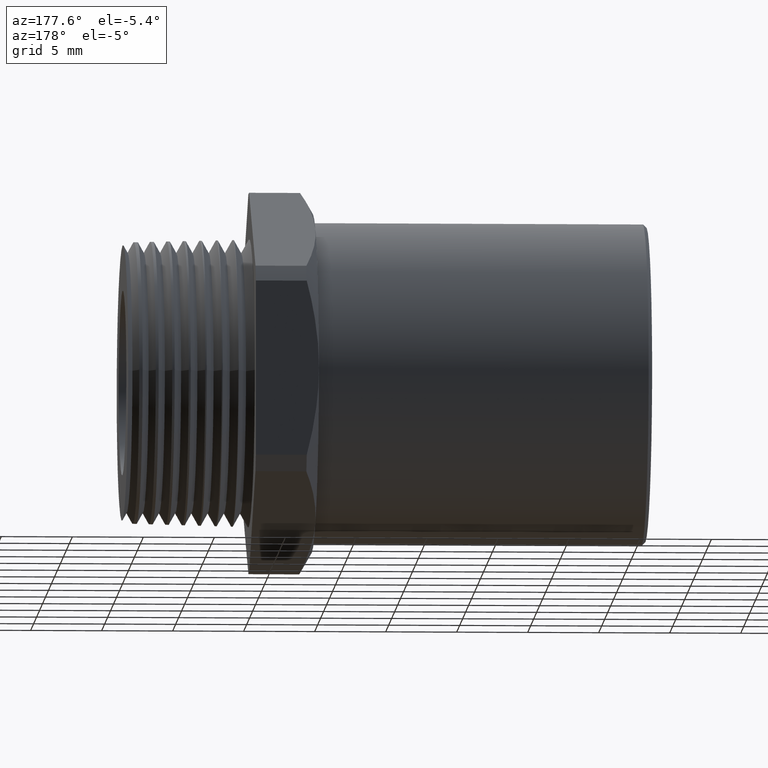
[diagram: clean part render]
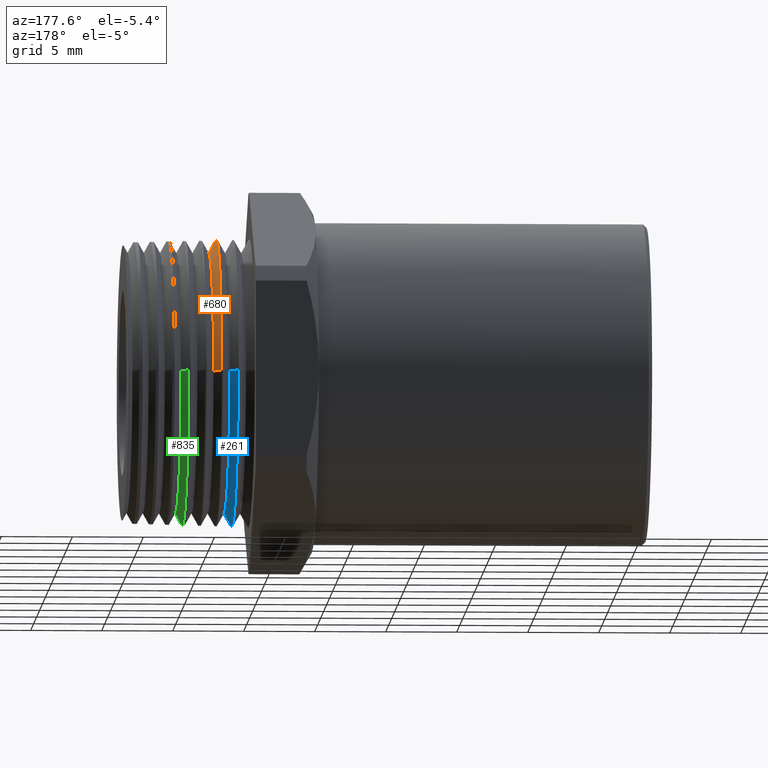
[diagram: same view with three faces highlighted in distinct colors, each labeled with its STEP entity id]
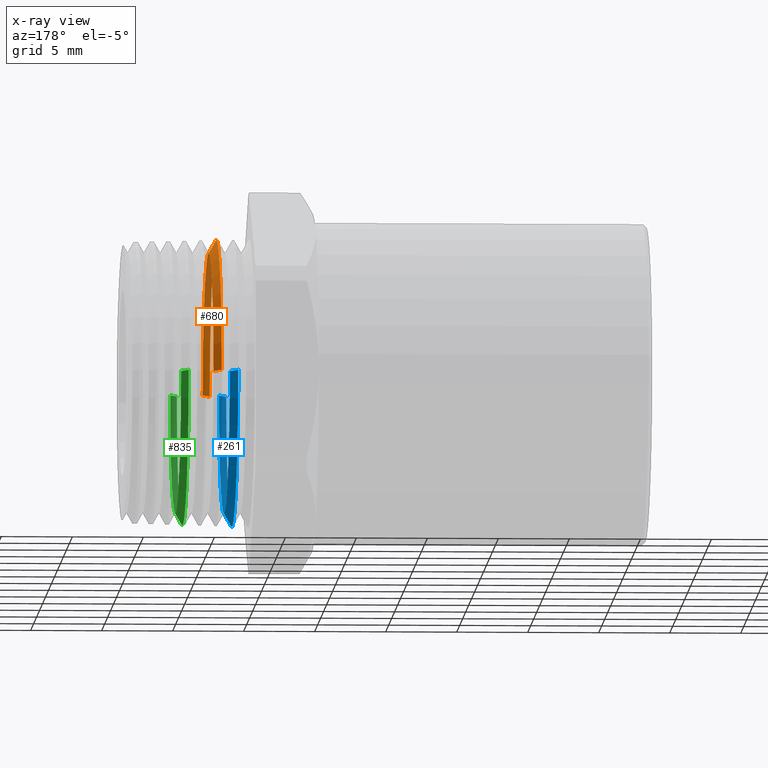
[diagram: x-ray of the same camera — body ghosted, the three highlighted faces saturated]
A machine part, auxiliary view with three faces highlighted in distinct colors.
The next image is the same camera in x-ray (body ghosted, the three faces saturated) — at least one of them is partly hidden behind the body in this view.
Their STEP definitions:

[orange] entity #680 — the highlighted conical surface has half-angle 60 deg.
#652 = VERTEX_POINT ( 'NONE', #2089 ) ;
#672 = EDGE_CURVE ( 'NONE', #652, #687, #2124, .T. ) ;
#679 = ORIENTED_EDGE ( 'NONE', *, *, #699, .T. ) ;
#680 = ADVANCED_FACE ( 'NONE', ( #2112 ), #2111, .T. ) ;
#687 = VERTEX_POINT ( 'NONE', #2156 ) ;
#688 = ORIENTED_EDGE ( 'NONE', *, *, #672, .F. ) ;
#690 = EDGE_LOOP ( 'NONE', ( #688, #679, #733, #783, #710 ) ) ;
#695 = VERTEX_POINT ( 'NONE', #2142 ) ;
#699 = EDGE_CURVE ( 'NONE', #652, #695, #2194, .T. ) ;
#710 = ORIENTED_EDGE ( 'NONE', *, *, #717, .F. ) ;
#717 = EDGE_CURVE ( 'NONE', #687, #785, #2213, .T. ) ;
#718 = VERTEX_POINT ( 'NONE', #2209 ) ;
#719 = EDGE_CURVE ( 'NONE', #718, #695, #2208, .T. ) ;
#732 = EDGE_CURVE ( 'NONE', #785, #718, #2243, .T. ) ;
#733 = ORIENTED_EDGE ( 'NONE', *, *, #719, .F. ) ;
#783 = ORIENTED_EDGE ( 'NONE', *, *, #732, .F. ) ;
#785 = VERTEX_POINT ( 'NONE', #2331 ) ;
#2089 = CARTESIAN_POINT ( 'NONE',  ( -0.2374370674708087000, 0.3609198544916924500, 4.644637973015400500E-017 ) ) ;
#2107 = DIRECTION ( 'NONE',  ( 0.0000000000000000000, -1.000000000000000000, 0.0000000000000000000 ) ) ;
#2108 = DIRECTION ( 'NONE',  ( -1.000000000000000000, 3.789761643835506200E-017, 0.0000000000000000000 ) ) ;
#2109 = AXIS2_PLACEMENT_3D ( 'NONE', #2117, #2108, #2107 ) ;
#2111 = CONICAL_SURFACE ( 'NONE', #2109, 0.4000000000000001900, 1.047197551196596300 ) ;
#2112 = FACE_OUTER_BOUND ( 'NONE', #690, .T. ) ;
#2117 = CARTESIAN_POINT ( 'NONE',  ( -0.2599999999999999500, -4.791035697261788400E-017, 0.0000000000000000000 ) ) ;
#2120 = DIRECTION ( 'NONE',  ( 0.0000000000000000000, 1.000000000000000000, 0.0000000000000000000 ) ) ;
#2121 = DIRECTION ( 'NONE',  ( 1.000000000000000000, -3.789761643835506200E-017, 0.0000000000000000000 ) ) ;
#2122 = CARTESIAN_POINT ( 'NONE',  ( -0.2374370674708087000, -4.876543833533366000E-017, 0.0000000000000000000 ) ) ;
#2123 = AXIS2_PLACEMENT_3D ( 'NONE', #2122, #2121, #2120 ) ;
#2124 = CIRCLE ( 'NONE', #2123, 0.3609198544916925000 ) ;
#2142 = CARTESIAN_POINT ( 'NONE',  ( -0.2586184527505260800, 0.3976070899708543100, 4.869282500511004300E-017 ) ) ;
#2156 = CARTESIAN_POINT ( 'NONE',  ( -0.2374370674708087000, -0.3609198544916925600, 0.0000000000000000000 ) ) ;
#2191 = DIRECTION ( 'NONE',  ( -0.5000000000000012200, 0.8660254037844379300, 1.060575238724906100E-016 ) ) ;
#2192 = VECTOR ( 'NONE', #2191, 39.37007874015748100 ) ;
#2193 = CARTESIAN_POINT ( 'NONE',  ( -0.2599999999999999500, 0.4000000000000000800, 4.898587196589414900E-017 ) ) ;
#2194 = LINE ( 'NONE', #2193, #2192 ) ;
#2204 = DIRECTION ( 'NONE',  ( 0.0000000000000000000, 0.0000000000000000000, 1.000000000000000000 ) ) ;
#2205 = DIRECTION ( 'NONE',  ( -1.000000000000000000, 0.0000000000000000000, 0.0000000000000000000 ) ) ;
#2206 = CARTESIAN_POINT ( 'NONE',  ( -0.2586184527505260800, -4.796271432036991400E-017, 0.0000000000000000000 ) ) ;
#2207 = AXIS2_PLACEMENT_3D ( 'NONE', #2206, #2205, #2204 ) ;
#2208 = CIRCLE ( 'NONE', #2207, 0.3976070899708543700 ) ;
#2209 = CARTESIAN_POINT ( 'NONE',  ( -0.2586184527505260800, -4.796271432036991400E-017, 0.3976070899708543700 ) ) ;
#2210 = DIRECTION ( 'NONE',  ( -0.5000000000000012200, -0.8660254037844379300, 0.0000000000000000000 ) ) ;
#2211 = VECTOR ( 'NONE', #2210, 39.37007874015748100 ) ;
#2212 = CARTESIAN_POINT ( 'NONE',  ( -0.2599999999999999500, -0.4000000000000002400, 0.0000000000000000000 ) ) ;
#2213 = LINE ( 'NONE', #2212, #2211 ) ;
#2239 = DIRECTION ( 'NONE',  ( 0.0000000000000000000, 0.0000000000000000000, 1.000000000000000000 ) ) ;
#2240 = DIRECTION ( 'NONE',  ( -1.000000000000000000, 0.0000000000000000000, 0.0000000000000000000 ) ) ;
#2241 = CARTESIAN_POINT ( 'NONE',  ( -0.2586184527505260800, -4.796271432036991400E-017, 0.0000000000000000000 ) ) ;
#2242 = AXIS2_PLACEMENT_3D ( 'NONE', #2241, #2240, #2239 ) ;
#2243 = CIRCLE ( 'NONE', #2242, 0.3976070899708543700 ) ;
#2331 = CARTESIAN_POINT ( 'NONE',  ( -0.2586184527505260800, -0.3976070899708544800, 0.0000000000000000000 ) ) ;

[blue] entity #261 — the highlighted conical surface has half-angle 60 deg.
#179 = ORIENTED_EDGE ( 'NONE', *, *, #579, .F. ) ;
#180 = ORIENTED_EDGE ( 'NONE', *, *, #696, .F. ) ;
#181 = ORIENTED_EDGE ( 'NONE', *, *, #773, .T. ) ;
#182 = ORIENTED_EDGE ( 'NONE', *, *, #183, .F. ) ;
#183 = EDGE_CURVE ( 'NONE', #747, #740, #1209, .T. ) ;
#247 = EDGE_LOOP ( 'NONE', ( #249, #182, #181, #180, #179 ) ) ;
#249 = ORIENTED_EDGE ( 'NONE', *, *, #721, .F. ) ;
#261 = ADVANCED_FACE ( 'NONE', ( #1315 ), #1314, .T. ) ;
#579 = EDGE_CURVE ( 'NONE', #720, #589, #1906, .T. ) ;
#589 = VERTEX_POINT ( 'NONE', #1953 ) ;
#696 = EDGE_CURVE ( 'NONE', #589, #697, #2141, .T. ) ;
#697 = VERTEX_POINT ( 'NONE', #2136 ) ;
#720 = VERTEX_POINT ( 'NONE', #2203 ) ;
#721 = EDGE_CURVE ( 'NONE', #740, #720, #2202, .T. ) ;
#740 = VERTEX_POINT ( 'NONE', #2229 ) ;
#747 = VERTEX_POINT ( 'NONE', #2281 ) ;
#773 = EDGE_CURVE ( 'NONE', #747, #697, #2295, .T. ) ;
#1201 = DIRECTION ( 'NONE',  ( 0.0000000000000000000, 1.000000000000000000, 0.0000000000000000000 ) ) ;
#1202 = DIRECTION ( 'NONE',  ( 1.000000000000000000, -3.789761643835506200E-017, 0.0000000000000000000 ) ) ;
#1203 = CARTESIAN_POINT ( 'NONE',  ( -0.2824370674708087100, -4.706004559560767600E-017, 0.0000000000000000000 ) ) ;
#1204 = AXIS2_PLACEMENT_3D ( 'NONE', #1203, #1202, #1201 ) ;
#1209 = CIRCLE ( 'NONE', #1204, 0.3609198544916925000 ) ;
#1310 = DIRECTION ( 'NONE',  ( 0.0000000000000000000, -1.000000000000000000, 0.0000000000000000000 ) ) ;
#1311 = DIRECTION ( 'NONE',  ( -1.000000000000000000, 3.789761643835506200E-017, 0.0000000000000000000 ) ) ;
#1312 = AXIS2_PLACEMENT_3D ( 'NONE', #1320, #1311, #1310 ) ;
#1314 = CONICAL_SURFACE ( 'NONE', #1312, 0.4000000000000001900, 1.047197551196596300 ) ;
#1315 = FACE_OUTER_BOUND ( 'NONE', #247, .T. ) ;
#1320 = CARTESIAN_POINT ( 'NONE',  ( -0.3049999999999999400, -4.620496423289190700E-017, 0.0000000000000000000 ) ) ;
#1902 = DIRECTION ( 'NONE',  ( 0.0000000000000000000, 0.0000000000000000000, 1.000000000000000000 ) ) ;
#1903 = DIRECTION ( 'NONE',  ( -1.000000000000000000, 0.0000000000000000000, 0.0000000000000000000 ) ) ;
#1904 = CARTESIAN_POINT ( 'NONE',  ( -0.3043092263752630300, -4.623114290676791600E-017, 0.0000000000000000000 ) ) ;
#1905 = AXIS2_PLACEMENT_3D ( 'NONE', #1904, #1903, #1902 ) ;
#1906 = CIRCLE ( 'NONE', #1905, 0.3988035449854273100 ) ;
#1953 = CARTESIAN_POINT ( 'NONE',  ( -0.3043092263752630300, 4.884133189200551400E-017, -0.3988035449854273100 ) ) ;
#2136 = CARTESIAN_POINT ( 'NONE',  ( -0.3043092263752630300, -0.3988035449854273100, 0.0000000000000000000 ) ) ;
#2137 = DIRECTION ( 'NONE',  ( 0.0000000000000000000, 0.0000000000000000000, 1.000000000000000000 ) ) ;
#2138 = DIRECTION ( 'NONE',  ( -1.000000000000000000, 0.0000000000000000000, 0.0000000000000000000 ) ) ;
#2139 = CARTESIAN_POINT ( 'NONE',  ( -0.3043092263752630300, -4.623114290676791600E-017, 0.0000000000000000000 ) ) ;
#2140 = AXIS2_PLACEMENT_3D ( 'NONE', #2139, #2138, #2137 ) ;
#2141 = CIRCLE ( 'NONE', #2140, 0.3988035449854273100 ) ;
#2199 = DIRECTION ( 'NONE',  ( -0.5000000000000012200, 0.8660254037844379300, 1.060575238724906100E-016 ) ) ;
#2200 = VECTOR ( 'NONE', #2199, 39.37007874015748100 ) ;
#2201 = CARTESIAN_POINT ( 'NONE',  ( -0.3049999999999999400, 0.4000000000000000800, 4.898587196589414900E-017 ) ) ;
#2202 = LINE ( 'NONE', #2201, #2200 ) ;
#2203 = CARTESIAN_POINT ( 'NONE',  ( -0.3043092263752630300, 0.3988035449854271900, 4.883934848550210200E-017 ) ) ;
#2229 = CARTESIAN_POINT ( 'NONE',  ( -0.2824370674708087100, 0.3609198544916924500, 4.651964147035003200E-017 ) ) ;
#2281 = CARTESIAN_POINT ( 'NONE',  ( -0.2824370674708087100, -0.3609198544916925600, 0.0000000000000000000 ) ) ;
#2295 = LINE ( 'NONE', #2357, #2356 ) ;
#2355 = DIRECTION ( 'NONE',  ( -0.5000000000000012200, -0.8660254037844379300, 0.0000000000000000000 ) ) ;
#2356 = VECTOR ( 'NONE', #2355, 39.37007874015748100 ) ;
#2357 = CARTESIAN_POINT ( 'NONE',  ( -0.3049999999999999400, -0.4000000000000002400, 0.0000000000000000000 ) ) ;

[green] entity #835 — the highlighted conical surface has half-angle 60 deg.
#64 = VERTEX_POINT ( 'NONE', #1025 ) ;
#66 = EDGE_CURVE ( 'NONE', #114, #64, #1024, .T. ) ;
#113 = VERTEX_POINT ( 'NONE', #1118 ) ;
#114 = VERTEX_POINT ( 'NONE', #1117 ) ;
#134 = ORIENTED_EDGE ( 'NONE', *, *, #490, .F. ) ;
#136 = ORIENTED_EDGE ( 'NONE', *, *, #482, .T. ) ;
#137 = ORIENTED_EDGE ( 'NONE', *, *, #433, .F. ) ;
#422 = VERTEX_POINT ( 'NONE', #1613 ) ;
#433 = EDGE_CURVE ( 'NONE', #852, #422, #1590, .T. ) ;
#482 = EDGE_CURVE ( 'NONE', #113, #422, #1722, .T. ) ;
#490 = EDGE_CURVE ( 'NONE', #64, #852, #1708, .T. ) ;
#831 = ORIENTED_EDGE ( 'NONE', *, *, #832, .F. ) ;
#832 = EDGE_CURVE ( 'NONE', #113, #114, #2451, .T. ) ;
#833 = EDGE_LOOP ( 'NONE', ( #834, #831, #136, #137, #134 ) ) ;
#834 = ORIENTED_EDGE ( 'NONE', *, *, #66, .F. ) ;
#835 = ADVANCED_FACE ( 'NONE', ( #2442 ), #2441, .T. ) ;
#852 = VERTEX_POINT ( 'NONE', #2424 ) ;
#1016 = DIRECTION ( 'NONE',  ( -0.5000000000000012200, 0.8660254037844379300, 1.060575238724906100E-016 ) ) ;
#1017 = VECTOR ( 'NONE', #1016, 39.37007874015748100 ) ;
#1018 = CARTESIAN_POINT ( 'NONE',  ( -0.1699999999999999600, 0.4000000000000000800, 4.898587196589414900E-017 ) ) ;
#1024 = LINE ( 'NONE', #1018, #1017 ) ;
#1025 = CARTESIAN_POINT ( 'NONE',  ( -0.1672369055010522700, 0.3952141799417086500, 4.839977804432596100E-017 ) ) ;
#1117 = CARTESIAN_POINT ( 'NONE',  ( -0.1474370674708087000, 0.3609198544916924500, 4.629985624976196400E-017 ) ) ;
#1118 = CARTESIAN_POINT ( 'NONE',  ( -0.1474370674708087300, -0.3609198544916925600, 0.0000000000000000000 ) ) ;
#1587 = DIRECTION ( 'NONE',  ( 0.0000000000000000000, 0.0000000000000000000, 1.000000000000000000 ) ) ;
#1588 = DIRECTION ( 'NONE',  ( -1.000000000000000000, 0.0000000000000000000, 0.0000000000000000000 ) ) ;
#1589 = AXIS2_PLACEMENT_3D ( 'NONE', #1595, #1588, #1587 ) ;
#1590 = CIRCLE ( 'NONE', #1589, 0.3952141799417087100 ) ;
#1595 = CARTESIAN_POINT ( 'NONE',  ( -0.1672369055010522700, -5.142585714757388100E-017, 0.0000000000000000000 ) ) ;
#1613 = CARTESIAN_POINT ( 'NONE',  ( -0.1672369055010522700, -0.3952141799417088200, 0.0000000000000000000 ) ) ;
#1704 = DIRECTION ( 'NONE',  ( 0.0000000000000000000, 0.0000000000000000000, 1.000000000000000000 ) ) ;
#1705 = DIRECTION ( 'NONE',  ( -1.000000000000000000, 0.0000000000000000000, 0.0000000000000000000 ) ) ;
#1706 = CARTESIAN_POINT ( 'NONE',  ( -0.1672369055010522700, -5.142585714757388100E-017, 0.0000000000000000000 ) ) ;
#1707 = AXIS2_PLACEMENT_3D ( 'NONE', #1706, #1705, #1704 ) ;
#1708 = CIRCLE ( 'NONE', #1707, 0.3952141799417087100 ) ;
#1719 = DIRECTION ( 'NONE',  ( -0.5000000000000012200, -0.8660254037844379300, 0.0000000000000000000 ) ) ;
#1720 = VECTOR ( 'NONE', #1719, 39.37007874015748100 ) ;
#1721 = CARTESIAN_POINT ( 'NONE',  ( -0.1699999999999999600, -0.4000000000000002400, 0.0000000000000000000 ) ) ;
#1722 = LINE ( 'NONE', #1721, #1720 ) ;
#2424 = CARTESIAN_POINT ( 'NONE',  ( -0.1672369055010522700, 4.840830809890354100E-017, -0.3952141799417087100 ) ) ;
#2436 = DIRECTION ( 'NONE',  ( 0.0000000000000000000, -1.000000000000000000, 0.0000000000000000000 ) ) ;
#2437 = DIRECTION ( 'NONE',  ( -1.000000000000000000, 3.789761643835506200E-017, 0.0000000000000000000 ) ) ;
#2438 = CARTESIAN_POINT ( 'NONE',  ( -0.1699999999999999600, -5.132114245206983900E-017, 0.0000000000000000000 ) ) ;
#2439 = AXIS2_PLACEMENT_3D ( 'NONE', #2438, #2437, #2436 ) ;
#2441 = CONICAL_SURFACE ( 'NONE', #2439, 0.4000000000000001900, 1.047197551196596300 ) ;
#2442 = FACE_OUTER_BOUND ( 'NONE', #833, .T. ) ;
#2443 = DIRECTION ( 'NONE',  ( 4.730703990903511900E-017, 1.000000000000000000, 0.0000000000000000000 ) ) ;
#2444 = DIRECTION ( 'NONE',  ( 1.000000000000000000, -3.789761643835506200E-017, 0.0000000000000000000 ) ) ;
#2445 = CARTESIAN_POINT ( 'NONE',  ( -0.1474370674708087000, -5.217622381478560900E-017, 0.0000000000000000000 ) ) ;
#2446 = AXIS2_PLACEMENT_3D ( 'NONE', #2445, #2444, #2443 ) ;
#2451 = CIRCLE ( 'NONE', #2446, 0.3609198544916925000 ) ;